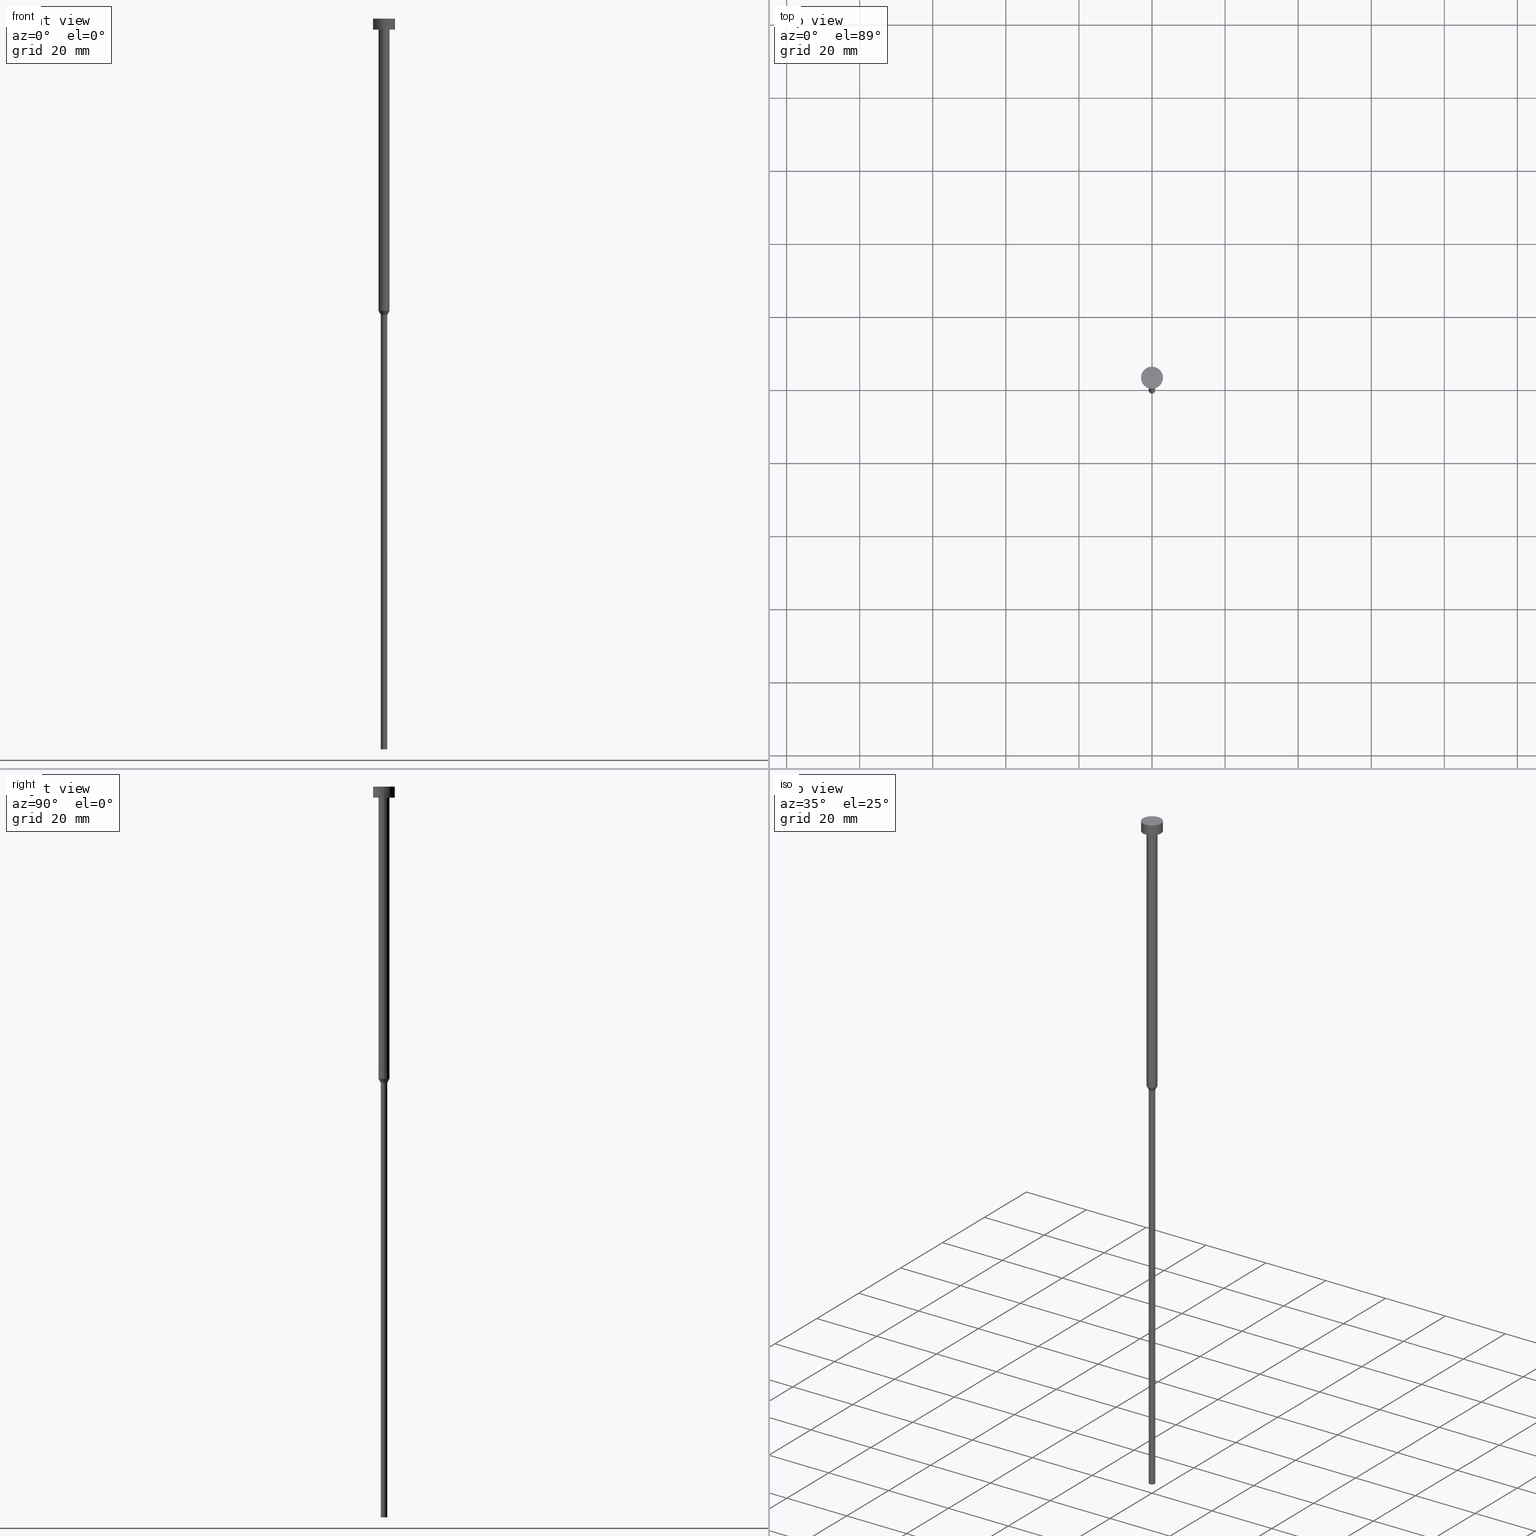
[diagram: canonical four-view strip — front | top / right | iso, engineering-drawing reading convention]
A machine part, canonical four-view strip (front | top / right | iso — engineering-drawing reading convention). The complete STEP part file that produces these views, byte-faithful:
ISO-10303-21;
HEADER;
FILE_DESCRIPTION (( 'STEP AP203' ),
    '1' );
FILE_NAME ('7287.STEP',
    '2023-02-13T09:04:04',
    ( '' ),
    ( '' ),
    'SwSTEP 2.0',
    'SolidWorks 2019',
    '' );
FILE_SCHEMA (( 'CONFIG_CONTROL_DESIGN' ));
ENDSEC;

DATA;
#1 = DIRECTION ( 'NONE',  ( 1.000000000000000000, 0.000000000000000000, 0.000000000000000000 ) ) ;
#2 = ORIENTED_EDGE ( 'NONE', *, *, #223, .F. ) ;
#3 = APPROVAL_PERSON_ORGANIZATION ( #311, #319, #115 ) ;
#4 =( LENGTH_UNIT ( ) NAMED_UNIT ( * ) SI_UNIT ( .MILLI., .METRE. ) );
#5 = ORIENTED_EDGE ( 'NONE', *, *, #349, .T. ) ;
#6 = PERSON_AND_ORGANIZATION ( #157, #102 ) ;
#7 = ADVANCED_FACE ( 'NONE', ( #289 ), #126, .T. ) ;
#8 = ORIENTED_EDGE ( 'NONE', *, *, #91, .F. ) ;
#9 = PERSON_AND_ORGANIZATION_ROLE ( 'design_owner' ) ;
#10 = ORIENTED_EDGE ( 'NONE', *, *, #305, .F. ) ;
#11 = EDGE_CURVE ( 'NONE', #221, #205, #51, .T. ) ;
#12 = ADVANCED_FACE ( 'NONE', ( #227 ), #202, .T. ) ;
#13 = CARTESIAN_POINT ( 'NONE',  ( 0.000000000000000000, 0.000000000000000000, 0.000000000000000000 ) ) ;
#14 = CYLINDRICAL_SURFACE ( 'NONE', #75, 3.000000000000000000 ) ;
#15 = CARTESIAN_POINT ( 'NONE',  ( 0.000000000000000000, 0.000000000000000000, -1.836970198721029934E-16 ) ) ;
#16 = CIRCLE ( 'NONE', #145, 3.000000000000000000 ) ;
#17 = DIRECTION ( 'NONE',  ( 1.000000000000000000, 0.000000000000000000, 0.000000000000000000 ) ) ;
#18 = ORIENTED_EDGE ( 'NONE', *, *, #268, .F. ) ;
#19 = CARTESIAN_POINT ( 'NONE',  ( -1.500000000000000000, 1.836970198721029934E-16, 0.000000000000000000 ) ) ;
#20 = DIRECTION ( 'NONE',  ( -0.000000000000000000, -0.000000000000000000, 1.000000000000000000 ) ) ;
#21 = VECTOR ( 'NONE', #74, 1000.000000000000000 ) ;
#22 = AXIS2_PLACEMENT_3D ( 'NONE', #156, #348, #210 ) ;
#23 = DIRECTION ( 'NONE',  ( 1.000000000000000000, 0.000000000000000000, 0.000000000000000000 ) ) ;
#24 = DIRECTION ( 'NONE',  ( -0.000000000000000000, -0.000000000000000000, 1.000000000000000000 ) ) ;
#25 = CARTESIAN_POINT ( 'NONE',  ( -1.500000000000000000, 1.836970198721029934E-16, -80.00000000000000000 ) ) ;
#26 = FACE_OUTER_BOUND ( 'NONE', #218, .T. ) ;
#27 = PERSON_AND_ORGANIZATION ( #157, #102 ) ;
#28 = CALENDAR_DATE ( 2023, 13, 2 ) ;
#29 = ORIENTED_EDGE ( 'NONE', *, *, #284, .F. ) ;
#30 = DIRECTION ( 'NONE',  ( 0.000000000000000000, 0.000000000000000000, 1.000000000000000000 ) ) ;
#31 = AXIS2_PLACEMENT_3D ( 'NONE', #295, #326, #176 ) ;
#32 = ORIENTED_EDGE ( 'NONE', *, *, #11, .F. ) ;
#33 = APPROVAL ( #308, 'NEUR�EN�' ) ;
#34 = SECURITY_CLASSIFICATION_LEVEL ( 'unclassified' ) ;
#35 = ORIENTED_EDGE ( 'NONE', *, *, #284, .T. ) ;
#36 = SECURITY_CLASSIFICATION ( '', '', #34 ) ;
#37 = LINE ( 'NONE', #97, #21 ) ;
#38 = DIRECTION ( 'NONE',  ( 1.000000000000000000, 0.000000000000000000, 0.000000000000000000 ) ) ;
#39 = APPROVAL_DATE_TIME ( #69, #33 ) ;
#40 = DIRECTION ( 'NONE',  ( 1.000000000000000000, 0.000000000000000000, 0.000000000000000000 ) ) ;
#41 = FACE_BOUND ( 'NONE', #279, .T. ) ;
#42 = CC_DESIGN_APPROVAL ( #319, ( #231 ) ) ;
#43 = ADVANCED_FACE ( 'NONE', ( #95 ), #318, .T. ) ;
#44 = DIRECTION ( 'NONE',  ( 1.000000000000000000, 0.000000000000000000, 0.000000000000000000 ) ) ;
#45 = CARTESIAN_POINT ( 'NONE',  ( 0.000000000000000000, 0.000000000000000000, -3.673940397442059868E-16 ) ) ;
#46 = DIRECTION ( 'NONE',  ( -0.000000000000000000, -0.000000000000000000, 1.000000000000000000 ) ) ;
#47 = DIRECTION ( 'NONE',  ( 1.000000000000000000, 0.000000000000000000, 0.000000000000000000 ) ) ;
#48 = CC_DESIGN_PERSON_AND_ORGANIZATION_ASSIGNMENT ( #215, #9, ( #328 ) ) ;
#49 = CARTESIAN_POINT ( 'NONE',  ( -3.000000000000000000, 3.673940397442059868E-16, -3.673940397442059868E-16 ) ) ;
#50 = LINE ( 'NONE', #25, #154 ) ;
#51 = CIRCLE ( 'NONE', #247, 0.9000000000000000222 ) ;
#52 = CONICAL_SURFACE ( 'NONE', #67, 1.500000000000000000, 0.5235987755982991487 ) ;
#53 = PERSON_AND_ORGANIZATION_ROLE ( 'design_supplier' ) ;
#54 = ORIENTED_EDGE ( 'NONE', *, *, #131, .T. ) ;
#55 = COORDINATED_UNIVERSAL_TIME_OFFSET ( 1, 0, .AHEAD. ) ;
#56 = EDGE_CURVE ( 'NONE', #58, #189, #340, .T. ) ;
#57 = EDGE_LOOP ( 'NONE', ( #87, #5, #216, #29 ) ) ;
#58 = VERTEX_POINT ( 'NONE', #150 ) ;
#59 = CC_DESIGN_PERSON_AND_ORGANIZATION_ASSIGNMENT ( #6, #109, ( #64 ) ) ;
#60 = DATE_AND_TIME ( #336, #233 ) ;
#61 = ORIENTED_EDGE ( 'NONE', *, *, #349, .F. ) ;
#62 = ADVANCED_FACE ( 'NONE', ( #148 ), #286, .T. ) ;
#63 = CARTESIAN_POINT ( 'NONE',  ( 0.000000000000000000, -3.000000000000000000, -3.000000000000000888 ) ) ;
#64 = PRODUCT_DEFINITION ( 'NEZN�M�', '', #231, #71 ) ;
#65 = LOCAL_TIME ( 10, 4, 4.000000000000000000, #240 ) ;
#66 = DIRECTION ( 'NONE',  ( 1.000000000000000000, 0.000000000000000000, 0.000000000000000000 ) ) ;
#67 = AXIS2_PLACEMENT_3D ( 'NONE', #350, #46, #23 ) ;
#68 = CONICAL_SURFACE ( 'NONE', #251, 1.500000000000000000, 0.5235987755982991487 ) ;
#69 = DATE_AND_TIME ( #73, #249 ) ;
#70 = DIRECTION ( 'NONE',  ( -0.000000000000000000, -0.000000000000000000, 1.000000000000000000 ) ) ;
#71 = DESIGN_CONTEXT ( 'detailed design', #332, 'design' ) ;
#72 = CARTESIAN_POINT ( 'NONE',  ( 0.000000000000000000, 0.000000000000000000, -200.0000000000000000 ) ) ;
#73 = CALENDAR_DATE ( 2023, 13, 2 ) ;
#74 = DIRECTION ( 'NONE',  ( -0.000000000000000000, -0.000000000000000000, 1.000000000000000000 ) ) ;
#75 = AXIS2_PLACEMENT_3D ( 'NONE', #225, #24, #236 ) ;
#76 = DIRECTION ( 'NONE',  ( -0.000000000000000000, -0.000000000000000000, 1.000000000000000000 ) ) ;
#77 = DIRECTION ( 'NONE',  ( 1.000000000000000000, 0.000000000000000000, 0.000000000000000000 ) ) ;
#78 = FACE_OUTER_BOUND ( 'NONE', #220, .T. ) ;
#79 = CARTESIAN_POINT ( 'NONE',  ( 0.000000000000000000, 0.000000000000000000, 0.000000000000000000 ) ) ;
#80 = CARTESIAN_POINT ( 'NONE',  ( 3.000000000000000000, 0.000000000000000000, 0.000000000000000000 ) ) ;
#81 = APPROVAL_STATUS ( 'not_yet_approved' ) ;
#82 = AXIS2_PLACEMENT_3D ( 'NONE', #169, #282, #38 ) ;
#83 = CIRCLE ( 'NONE', #301, 3.000000000000000000 ) ;
#84 = PERSON_AND_ORGANIZATION ( #157, #102 ) ;
#85 = VERTEX_POINT ( 'NONE', #320 ) ;
#86 = DATE_TIME_ROLE ( 'classification_date' ) ;
#87 = ORIENTED_EDGE ( 'NONE', *, *, #128, .F. ) ;
#88 = APPLICATION_PROTOCOL_DEFINITION ( 'international standard', 'config_control_design', 1994, #332 ) ;
#89 = EDGE_LOOP ( 'NONE', ( #140, #114 ) ) ;
#90 = PERSON_AND_ORGANIZATION_ROLE ( 'creator' ) ;
#91 = EDGE_CURVE ( 'NONE', #112, #221, #37, .T. ) ;
#92 = ORIENTED_EDGE ( 'NONE', *, *, #239, .T. ) ;
#93 = DIRECTION ( 'NONE',  ( 0.000000000000000000, -0.000000000000000000, 1.000000000000000000 ) ) ;
#94 = CARTESIAN_POINT ( 'NONE',  ( 1.500000000000000000, 0.000000000000000000, -80.00000000000000000 ) ) ;
#95 = FACE_OUTER_BOUND ( 'NONE', #272, .T. ) ;
#96 = UNCERTAINTY_MEASURE_WITH_UNIT (LENGTH_MEASURE( 1.000000000000000082E-05 ), #4, 'distance_accuracy_value', 'NONE');
#97 = CARTESIAN_POINT ( 'NONE',  ( 0.9000000000000000222, 0.000000000000000000, 0.000000000000000000 ) ) ;
#98 = ORIENTED_EDGE ( 'NONE', *, *, #305, .T. ) ;
#99 = ADVANCED_FACE ( 'NONE', ( #252 ), #229, .T. ) ;
#100 = VECTOR ( 'NONE', #315, 1000.000000000000000 ) ;
#101 = FACE_OUTER_BOUND ( 'NONE', #197, .T. ) ;
#102 = ORGANIZATION ( 'NEUR�EN�', 'NEUR�EN�', '' ) ;
#103 = DIRECTION ( 'NONE',  ( -0.000000000000000000, -0.000000000000000000, 1.000000000000000000 ) ) ;
#104 = EDGE_CURVE ( 'NONE', #189, #274, #262, .T. ) ;
#105 = DIRECTION ( 'NONE',  ( -0.000000000000000000, -0.000000000000000000, 1.000000000000000000 ) ) ;
#106 = DIRECTION ( 'NONE',  ( -0.5000000000000002220, 6.123233995736768501E-17, 0.8660254037844384856 ) ) ;
#107 = DIRECTION ( 'NONE',  ( 1.000000000000000000, 0.000000000000000000, 0.000000000000000000 ) ) ;
#108 = CARTESIAN_POINT ( 'NONE',  ( 0.9000000000000000222, 0.000000000000000000, -81.03923048454132072 ) ) ;
#109 = PERSON_AND_ORGANIZATION_ROLE ( 'creator' ) ;
#110 = CLOSED_SHELL ( 'NONE', ( #152, #43, #337, #196, #62, #99, #235, #246, #120, #12, #7 ) ) ;
#111 = ORIENTED_EDGE ( 'NONE', *, *, #255, .T. ) ;
#112 = VERTEX_POINT ( 'NONE', #170 ) ;
#113 = APPLICATION_PROTOCOL_DEFINITION ( 'international standard', 'config_control_design', 1994, #316 ) ;
#114 = ORIENTED_EDGE ( 'NONE', *, *, #131, .F. ) ;
#115 = APPROVAL_ROLE ( '' ) ;
#116 = ORIENTED_EDGE ( 'NONE', *, *, #223, .T. ) ;
#117 = VECTOR ( 'NONE', #147, 1000.000000000000227 ) ;
#118 = AXIS2_PLACEMENT_3D ( 'NONE', #238, #237, #264 ) ;
#119 = LINE ( 'NONE', #94, #117 ) ;
#120 = ADVANCED_FACE ( 'NONE', ( #41, #101 ), #206, .T. ) ;
#121 = CARTESIAN_POINT ( 'NONE',  ( 0.000000000000000000, 0.000000000000000000, 0.000000000000000000 ) ) ;
#122 = DIRECTION ( 'NONE',  ( 0.000000000000000000, 0.000000000000000000, -1.000000000000000000 ) ) ;
#123 = DIRECTION ( 'NONE',  ( 1.000000000000000000, 0.000000000000000000, 0.000000000000000000 ) ) ;
#124 = ORIENTED_EDGE ( 'NONE', *, *, #303, .T. ) ;
#125 = EDGE_CURVE ( 'NONE', #221, #58, #119, .T. ) ;
#126 = PLANE ( 'NONE',  #314 ) ;
#127 = CARTESIAN_POINT ( 'NONE',  ( 1.500000000000000000, 0.000000000000000000, 0.000000000000000000 ) ) ;
#128 = EDGE_CURVE ( 'NONE', #307, #312, #280, .T. ) ;
#129 = CARTESIAN_POINT ( 'NONE',  ( -3.000000000000000000, 3.673940397442059868E-16, -3.000000000000000888 ) ) ;
#130 = DIRECTION ( 'NONE',  ( 1.000000000000000000, 0.000000000000000000, 0.000000000000000000 ) ) ;
#131 = EDGE_CURVE ( 'NONE', #165, #112, #299, .T. ) ;
#132 = CARTESIAN_POINT ( 'NONE',  ( 0.000000000000000000, 0.000000000000000000, -3.000000000000000888 ) ) ;
#133 = CC_DESIGN_APPROVAL ( #33, ( #36 ) ) ;
#134 = CARTESIAN_POINT ( 'NONE',  ( -0.9000000000000000222, 1.102182119232617788E-16, -81.03923048454132072 ) ) ;
#135 = APPROVAL_ROLE ( '' ) ;
#136 = ORIENTED_EDGE ( 'NONE', *, *, #91, .T. ) ;
#137 = DIRECTION ( 'NONE',  ( 1.000000000000000000, 0.000000000000000000, 0.000000000000000000 ) ) ;
#138 = EDGE_LOOP ( 'NONE', ( #163, #260, #10, #275 ) ) ;
#139 = DIRECTION ( 'NONE',  ( -0.000000000000000000, -0.000000000000000000, 1.000000000000000000 ) ) ;
#140 = ORIENTED_EDGE ( 'NONE', *, *, #181, .F. ) ;
#141 = COORDINATED_UNIVERSAL_TIME_OFFSET ( 1, 0, .AHEAD. ) ;
#142 = EDGE_CURVE ( 'NONE', #213, #307, #173, .T. ) ;
#143 = ORIENTED_EDGE ( 'NONE', *, *, #56, .F. ) ;
#144 = APPROVAL_PERSON_ORGANIZATION ( #27, #293, #135 ) ;
#145 = AXIS2_PLACEMENT_3D ( 'NONE', #45, #20, #347 ) ;
#146 = ORIENTED_EDGE ( 'NONE', *, *, #257, .T. ) ;
#147 = DIRECTION ( 'NONE',  ( 0.5000000000000002220, 0.000000000000000000, 0.8660254037844384856 ) ) ;
#148 = FACE_OUTER_BOUND ( 'NONE', #89, .T. ) ;
#149 = DIRECTION ( 'NONE',  ( 1.000000000000000000, 0.000000000000000000, 0.000000000000000000 ) ) ;
#150 = CARTESIAN_POINT ( 'NONE',  ( 1.500000000000000000, 0.000000000000000000, -80.00000000000000000 ) ) ;
#151 = CARTESIAN_POINT ( 'NONE',  ( -1.500000000000000000, 1.836970198721029934E-16, -3.000000000000000888 ) ) ;
#152 = ADVANCED_FACE ( 'NONE', ( #201 ), #14, .T. ) ;
#153 = LINE ( 'NONE', #323, #258 ) ;
#154 = VECTOR ( 'NONE', #106, 1000.000000000000227 ) ;
#155 = CARTESIAN_POINT ( 'NONE',  ( 0.000000000000000000, 0.000000000000000000, -3.673940397442059868E-16 ) ) ;
#156 = CARTESIAN_POINT ( 'NONE',  ( 0.000000000000000000, 0.000000000000000000, -200.0000000000000000 ) ) ;
#157 = PERSON ( 'NEUR�EN�', 'NEUR�EN�', 'NEUR�EN�', ('NEUR�EN�'), ('NEUR�EN�'), ('NEUR�EN�') ) ;
#158 = DIRECTION ( 'NONE',  ( -0.000000000000000000, -0.000000000000000000, 1.000000000000000000 ) ) ;
#159 = AXIS2_PLACEMENT_3D ( 'NONE', #132, #76, #267 ) ;
#160 = ORIENTED_EDGE ( 'NONE', *, *, #125, .T. ) ;
#161 = PERSON_AND_ORGANIZATION ( #157, #102 ) ;
#162 = ORIENTED_EDGE ( 'NONE', *, *, #257, .F. ) ;
#163 = ORIENTED_EDGE ( 'NONE', *, *, #142, .T. ) ;
#164 = AXIS2_PLACEMENT_3D ( 'NONE', #79, #105, #107 ) ;
#165 = VERTEX_POINT ( 'NONE', #211 ) ;
#166 = ORIENTED_EDGE ( 'NONE', *, *, #181, .T. ) ;
#167 = DIRECTION ( 'NONE',  ( -0.000000000000000000, -0.000000000000000000, 1.000000000000000000 ) ) ;
#168 = APPROVAL_PERSON_ORGANIZATION ( #188, #33, #343 ) ;
#169 = CARTESIAN_POINT ( 'NONE',  ( 0.000000000000000000, 0.000000000000000000, -200.0000000000000000 ) ) ;
#170 = CARTESIAN_POINT ( 'NONE',  ( 0.9000000000000000222, 0.000000000000000000, -200.0000000000000000 ) ) ;
#171 = DIRECTION ( 'NONE',  ( -1.000000000000000000, 0.000000000000000000, -0.000000000000000000 ) ) ;
#172 = ORIENTED_EDGE ( 'NONE', *, *, #104, .F. ) ;
#173 = CIRCLE ( 'NONE', #250, 3.000000000000000000 ) ;
#174 = ORIENTED_EDGE ( 'NONE', *, *, #125, .F. ) ;
#175 = CYLINDRICAL_SURFACE ( 'NONE', #118, 0.9000000000000000222 ) ;
#176 = DIRECTION ( 'NONE',  ( 1.000000000000000000, 0.000000000000000000, 0.000000000000000000 ) ) ;
#177 = AXIS2_PLACEMENT_3D ( 'NONE', #72, #256, #171 ) ;
#178 = CARTESIAN_POINT ( 'NONE',  ( 0.000000000000000000, 0.000000000000000000, -80.00000000000000000 ) ) ;
#179 = CIRCLE ( 'NONE', #214, 0.9000000000000000222 ) ;
#180 = CARTESIAN_POINT ( 'NONE',  ( 0.000000000000000000, 0.000000000000000000, -3.000000000000000888 ) ) ;
#181 = EDGE_CURVE ( 'NONE', #112, #165, #270, .T. ) ;
#182 = DIRECTION ( 'NONE',  ( -0.000000000000000000, -0.000000000000000000, 1.000000000000000000 ) ) ;
#183 = AXIS2_PLACEMENT_3D ( 'NONE', #204, #222, #66 ) ;
#184 = DATE_AND_TIME ( #244, #65 ) ;
#185 = CC_DESIGN_APPROVAL ( #293, ( #64 ) ) ;
#186 = APPROVAL_STATUS ( 'not_yet_approved' ) ;
#187 = ORIENTED_EDGE ( 'NONE', *, *, #226, .F. ) ;
#188 = PERSON_AND_ORGANIZATION ( #157, #102 ) ;
#189 = VERTEX_POINT ( 'NONE', #290 ) ;
#190 = ADVANCED_BREP_SHAPE_REPRESENTATION ( '7287', ( #283, #288 ), #265 ) ;
#191 = DATE_AND_TIME ( #212, #330 ) ;
#192 = AXIS2_PLACEMENT_3D ( 'NONE', #63, #122, #339 ) ;
#193 = ORIENTED_EDGE ( 'NONE', *, *, #226, .T. ) ;
#194 =( NAMED_UNIT ( * ) PLANE_ANGLE_UNIT ( ) SI_UNIT ( $, .RADIAN. ) );
#195 = CC_DESIGN_PERSON_AND_ORGANIZATION_ASSIGNMENT ( #161, #273, ( #36 ) ) ;
#196 = ADVANCED_FACE ( 'NONE', ( #26 ), #175, .T. ) ;
#197 = EDGE_LOOP ( 'NONE', ( #277, #61 ) ) ;
#198 = CARTESIAN_POINT ( 'NONE',  ( -3.000000000000000000, 3.673940397442059868E-16, 0.000000000000000000 ) ) ;
#199 = AXIS2_PLACEMENT_3D ( 'NONE', #13, #342, #17 ) ;
#200 = VECTOR ( 'NONE', #158, 1000.000000000000000 ) ;
#201 = FACE_OUTER_BOUND ( 'NONE', #138, .T. ) ;
#202 = CYLINDRICAL_SURFACE ( 'NONE', #199, 3.000000000000000000 ) ;
#203 = SHAPE_DEFINITION_REPRESENTATION ( #254, #190 ) ;
#204 = CARTESIAN_POINT ( 'NONE',  ( 0.000000000000000000, 0.000000000000000000, 0.000000000000000000 ) ) ;
#205 = VERTEX_POINT ( 'NONE', #134 ) ;
#206 = PLANE ( 'NONE',  #192 ) ;
#207 = CIRCLE ( 'NONE', #322, 3.000000000000000000 ) ;
#208 = LINE ( 'NONE', #80, #346 ) ;
#209 = AXIS2_PLACEMENT_3D ( 'NONE', #121, #317, #149 ) ;
#210 = DIRECTION ( 'NONE',  ( 1.000000000000000000, 0.000000000000000000, 0.000000000000000000 ) ) ;
#211 = CARTESIAN_POINT ( 'NONE',  ( -0.9000000000000000222, 1.102182119232617788E-16, -200.0000000000000000 ) ) ;
#212 = CALENDAR_DATE ( 2023, 13, 2 ) ;
#213 = VERTEX_POINT ( 'NONE', #292 ) ;
#214 = AXIS2_PLACEMENT_3D ( 'NONE', #354, #103, #297 ) ;
#215 = PERSON_AND_ORGANIZATION ( #157, #102 ) ;
#216 = ORIENTED_EDGE ( 'NONE', *, *, #298, .T. ) ;
#217 = CARTESIAN_POINT ( 'NONE',  ( 0.000000000000000000, 0.000000000000000000, 0.000000000000000000 ) ) ;
#218 = EDGE_LOOP ( 'NONE', ( #166, #124, #32, #8 ) ) ;
#219 = COORDINATED_UNIVERSAL_TIME_OFFSET ( 1, 0, .AHEAD. ) ;
#220 = EDGE_LOOP ( 'NONE', ( #243, #111, #143, #174 ) ) ;
#221 = VERTEX_POINT ( 'NONE', #108 ) ;
#222 = DIRECTION ( 'NONE',  ( -0.000000000000000000, -0.000000000000000000, 1.000000000000000000 ) ) ;
#223 = EDGE_CURVE ( 'NONE', #274, #85, #321, .T. ) ;
#224 = DIRECTION ( 'NONE',  ( 1.000000000000000000, 0.000000000000000000, 0.000000000000000000 ) ) ;
#225 = CARTESIAN_POINT ( 'NONE',  ( 0.000000000000000000, 0.000000000000000000, 0.000000000000000000 ) ) ;
#226 = EDGE_CURVE ( 'NONE', #205, #221, #179, .T. ) ;
#227 = FACE_OUTER_BOUND ( 'NONE', #57, .T. ) ;
#228 = EDGE_LOOP ( 'NONE', ( #345, #193, #160, #18 ) ) ;
#229 = CYLINDRICAL_SURFACE ( 'NONE', #183, 0.9000000000000000222 ) ;
#230 = CC_DESIGN_DATE_AND_TIME_ASSIGNMENT ( #333, #86, ( #36 ) ) ;
#231 = PRODUCT_DEFINITION_FORMATION_WITH_SPECIFIED_SOURCE ( 'LIBOVOLN�', '', #328, .NOT_KNOWN. ) ;
#232 = CARTESIAN_POINT ( 'NONE',  ( 0.000000000000000000, 0.000000000000000000, -80.00000000000000000 ) ) ;
#233 = LOCAL_TIME ( 10, 4, 4.000000000000000000, #219 ) ;
#234 = FACE_OUTER_BOUND ( 'NONE', #331, .T. ) ;
#235 = ADVANCED_FACE ( 'NONE', ( #352 ), #52, .T. ) ;
#236 = DIRECTION ( 'NONE',  ( 1.000000000000000000, 0.000000000000000000, 0.000000000000000000 ) ) ;
#237 = DIRECTION ( 'NONE',  ( -0.000000000000000000, -0.000000000000000000, 1.000000000000000000 ) ) ;
#238 = CARTESIAN_POINT ( 'NONE',  ( 0.000000000000000000, 0.000000000000000000, 0.000000000000000000 ) ) ;
#239 = EDGE_CURVE ( 'NONE', #85, #274, #276, .T. ) ;
#240 = COORDINATED_UNIVERSAL_TIME_OFFSET ( 1, 0, .AHEAD. ) ;
#241 =( NAMED_UNIT ( * ) SI_UNIT ( $, .STERADIAN. ) SOLID_ANGLE_UNIT ( ) );
#242 = ORIENTED_EDGE ( 'NONE', *, *, #56, .T. ) ;
#243 = ORIENTED_EDGE ( 'NONE', *, *, #11, .T. ) ;
#244 = CALENDAR_DATE ( 2023, 13, 2 ) ;
#245 = ORIENTED_EDGE ( 'NONE', *, *, #303, .F. ) ;
#246 = ADVANCED_FACE ( 'NONE', ( #234 ), #296, .T. ) ;
#247 = AXIS2_PLACEMENT_3D ( 'NONE', #259, #341, #224 ) ;
#248 = ORIENTED_EDGE ( 'NONE', *, *, #268, .T. ) ;
#249 = LOCAL_TIME ( 10, 4, 4.000000000000000000, #287 ) ;
#250 = AXIS2_PLACEMENT_3D ( 'NONE', #285, #253, #40 ) ;
#251 = AXIS2_PLACEMENT_3D ( 'NONE', #178, #266, #130 ) ;
#252 = FACE_OUTER_BOUND ( 'NONE', #335, .T. ) ;
#253 = DIRECTION ( 'NONE',  ( -0.000000000000000000, -0.000000000000000000, 1.000000000000000000 ) ) ;
#254 = PRODUCT_DEFINITION_SHAPE ( 'NONE', 'NONE',  #64 ) ;
#255 = EDGE_CURVE ( 'NONE', #205, #189, #50, .T. ) ;
#256 = DIRECTION ( 'NONE',  ( 0.000000000000000000, 0.000000000000000000, -1.000000000000000000 ) ) ;
#257 = EDGE_CURVE ( 'NONE', #58, #85, #329, .T. ) ;
#258 = VECTOR ( 'NONE', #324, 1000.000000000000000 ) ;
#259 = CARTESIAN_POINT ( 'NONE',  ( 0.000000000000000000, 0.000000000000000000, -81.03923048454132072 ) ) ;
#260 = ORIENTED_EDGE ( 'NONE', *, *, #128, .T. ) ;
#261 = CC_DESIGN_DATE_AND_TIME_ASSIGNMENT ( #191, #271, ( #64 ) ) ;
#262 = LINE ( 'NONE', #19, #351 ) ;
#263 = DIRECTION ( 'NONE',  ( -0.000000000000000000, -0.000000000000000000, 1.000000000000000000 ) ) ;
#264 = DIRECTION ( 'NONE',  ( 1.000000000000000000, 0.000000000000000000, 0.000000000000000000 ) ) ;
#265 =( GEOMETRIC_REPRESENTATION_CONTEXT ( 3 ) GLOBAL_UNCERTAINTY_ASSIGNED_CONTEXT ( ( #96 ) ) GLOBAL_UNIT_ASSIGNED_CONTEXT ( ( #4, #194, #241 ) ) REPRESENTATION_CONTEXT ( 'NONE', 'WORKASPACE' ) );
#266 = DIRECTION ( 'NONE',  ( -0.000000000000000000, -0.000000000000000000, 1.000000000000000000 ) ) ;
#267 = DIRECTION ( 'NONE',  ( 1.000000000000000000, 0.000000000000000000, 0.000000000000000000 ) ) ;
#268 = EDGE_CURVE ( 'NONE', #189, #58, #304, .T. ) ;
#269 = DIRECTION ( 'NONE',  ( -0.000000000000000000, -0.000000000000000000, 1.000000000000000000 ) ) ;
#270 = CIRCLE ( 'NONE', #22, 0.9000000000000000222 ) ;
#271 = DATE_TIME_ROLE ( 'creation_date' ) ;
#272 = EDGE_LOOP ( 'NONE', ( #242, #334, #291, #162 ) ) ;
#273 = PERSON_AND_ORGANIZATION_ROLE ( 'classification_officer' ) ;
#274 = VERTEX_POINT ( 'NONE', #151 ) ;
#275 = ORIENTED_EDGE ( 'NONE', *, *, #298, .F. ) ;
#276 = CIRCLE ( 'NONE', #31, 1.500000000000000000 ) ;
#277 = ORIENTED_EDGE ( 'NONE', *, *, #142, .F. ) ;
#278 = APPROVAL_DATE_TIME ( #60, #319 ) ;
#279 = EDGE_LOOP ( 'NONE', ( #92, #116 ) ) ;
#280 = LINE ( 'NONE', #198, #100 ) ;
#281 = CC_DESIGN_SECURITY_CLASSIFICATION ( #36, ( #231 ) ) ;
#282 = DIRECTION ( 'NONE',  ( -0.000000000000000000, -0.000000000000000000, 1.000000000000000000 ) ) ;
#283 = MANIFOLD_SOLID_BREP ( 'Rotovat1', #110 ) ;
#284 = EDGE_CURVE ( 'NONE', #312, #309, #16, .T. ) ;
#285 = CARTESIAN_POINT ( 'NONE',  ( 0.000000000000000000, 0.000000000000000000, -3.000000000000000888 ) ) ;
#286 = PLANE ( 'NONE',  #177 ) ;
#287 = COORDINATED_UNIVERSAL_TIME_OFFSET ( 1, 0, .AHEAD. ) ;
#288 = AXIS2_PLACEMENT_3D ( 'NONE', #217, #30, #1 ) ;
#289 = FACE_OUTER_BOUND ( 'NONE', #313, .T. ) ;
#290 = CARTESIAN_POINT ( 'NONE',  ( -1.500000000000000000, 1.836970198721029934E-16, -80.00000000000000000 ) ) ;
#291 = ORIENTED_EDGE ( 'NONE', *, *, #239, .F. ) ;
#292 = CARTESIAN_POINT ( 'NONE',  ( 3.000000000000000000, 0.000000000000000000, -3.000000000000000888 ) ) ;
#293 = APPROVAL ( #81, 'NEUR�EN�' ) ;
#294 = CC_DESIGN_PERSON_AND_ORGANIZATION_ASSIGNMENT ( #84, #90, ( #231 ) ) ;
#295 = CARTESIAN_POINT ( 'NONE',  ( 0.000000000000000000, 0.000000000000000000, -3.000000000000000888 ) ) ;
#296 = CYLINDRICAL_SURFACE ( 'NONE', #164, 1.500000000000000000 ) ;
#297 = DIRECTION ( 'NONE',  ( 1.000000000000000000, 0.000000000000000000, 0.000000000000000000 ) ) ;
#298 = EDGE_CURVE ( 'NONE', #213, #309, #208, .T. ) ;
#299 = CIRCLE ( 'NONE', #82, 0.9000000000000000222 ) ;
#300 = PRODUCT_RELATED_PRODUCT_CATEGORY ( 'detail', '', ( #328 ) ) ;
#301 = AXIS2_PLACEMENT_3D ( 'NONE', #155, #269, #77 ) ;
#302 = MECHANICAL_CONTEXT ( 'NONE', #316, 'mechanical' ) ;
#303 = EDGE_CURVE ( 'NONE', #165, #205, #153, .T. ) ;
#304 = CIRCLE ( 'NONE', #327, 1.500000000000000000 ) ;
#305 = EDGE_CURVE ( 'NONE', #309, #312, #83, .T. ) ;
#306 = PERSON_AND_ORGANIZATION ( #157, #102 ) ;
#307 = VERTEX_POINT ( 'NONE', #129 ) ;
#308 = APPROVAL_STATUS ( 'not_yet_approved' ) ;
#309 = VERTEX_POINT ( 'NONE', #325 ) ;
#310 = AXIS2_PLACEMENT_3D ( 'NONE', #344, #167, #123 ) ;
#311 = PERSON_AND_ORGANIZATION ( #157, #102 ) ;
#312 = VERTEX_POINT ( 'NONE', #49 ) ;
#313 = EDGE_LOOP ( 'NONE', ( #98, #35 ) ) ;
#314 = AXIS2_PLACEMENT_3D ( 'NONE', #15, #93, #44 ) ;
#315 = DIRECTION ( 'NONE',  ( -0.000000000000000000, -0.000000000000000000, 1.000000000000000000 ) ) ;
#316 = APPLICATION_CONTEXT ( 'configuration controlled 3d designs of mechanical parts and assemblies' ) ;
#317 = DIRECTION ( 'NONE',  ( -0.000000000000000000, -0.000000000000000000, 1.000000000000000000 ) ) ;
#318 = CYLINDRICAL_SURFACE ( 'NONE', #209, 1.500000000000000000 ) ;
#319 = APPROVAL ( #186, 'NEUR�EN�' ) ;
#320 = CARTESIAN_POINT ( 'NONE',  ( 1.500000000000000000, 0.000000000000000000, -3.000000000000000888 ) ) ;
#321 = CIRCLE ( 'NONE', #159, 1.500000000000000000 ) ;
#322 = AXIS2_PLACEMENT_3D ( 'NONE', #180, #139, #137 ) ;
#323 = CARTESIAN_POINT ( 'NONE',  ( -0.9000000000000000222, 1.102182119232617788E-16, 0.000000000000000000 ) ) ;
#324 = DIRECTION ( 'NONE',  ( -0.000000000000000000, -0.000000000000000000, 1.000000000000000000 ) ) ;
#325 = CARTESIAN_POINT ( 'NONE',  ( 3.000000000000000000, 0.000000000000000000, -3.673940397442059868E-16 ) ) ;
#326 = DIRECTION ( 'NONE',  ( -0.000000000000000000, -0.000000000000000000, 1.000000000000000000 ) ) ;
#327 = AXIS2_PLACEMENT_3D ( 'NONE', #232, #263, #47 ) ;
#328 = PRODUCT ( '7287', '7287', '', ( #302 ) ) ;
#329 = LINE ( 'NONE', #127, #200 ) ;
#330 = LOCAL_TIME ( 10, 4, 4.000000000000000000, #55 ) ;
#331 = EDGE_LOOP ( 'NONE', ( #172, #248, #146, #2 ) ) ;
#332 = APPLICATION_CONTEXT ( 'configuration controlled 3d designs of mechanical parts and assemblies' ) ;
#333 = DATE_AND_TIME ( #28, #338 ) ;
#334 = ORIENTED_EDGE ( 'NONE', *, *, #104, .T. ) ;
#335 = EDGE_LOOP ( 'NONE', ( #245, #54, #136, #187 ) ) ;
#336 = CALENDAR_DATE ( 2023, 13, 2 ) ;
#337 = ADVANCED_FACE ( 'NONE', ( #78 ), #68, .T. ) ;
#338 = LOCAL_TIME ( 10, 4, 4.000000000000000000, #141 ) ;
#339 = DIRECTION ( 'NONE',  ( -1.000000000000000000, 0.000000000000000000, -0.000000000000000000 ) ) ;
#340 = CIRCLE ( 'NONE', #310, 1.500000000000000000 ) ;
#341 = DIRECTION ( 'NONE',  ( -0.000000000000000000, -0.000000000000000000, 1.000000000000000000 ) ) ;
#342 = DIRECTION ( 'NONE',  ( -0.000000000000000000, -0.000000000000000000, 1.000000000000000000 ) ) ;
#343 = APPROVAL_ROLE ( '' ) ;
#344 = CARTESIAN_POINT ( 'NONE',  ( 0.000000000000000000, 0.000000000000000000, -80.00000000000000000 ) ) ;
#345 = ORIENTED_EDGE ( 'NONE', *, *, #255, .F. ) ;
#346 = VECTOR ( 'NONE', #182, 1000.000000000000000 ) ;
#347 = DIRECTION ( 'NONE',  ( 1.000000000000000000, 0.000000000000000000, 0.000000000000000000 ) ) ;
#348 = DIRECTION ( 'NONE',  ( -0.000000000000000000, -0.000000000000000000, 1.000000000000000000 ) ) ;
#349 = EDGE_CURVE ( 'NONE', #307, #213, #207, .T. ) ;
#350 = CARTESIAN_POINT ( 'NONE',  ( 0.000000000000000000, 0.000000000000000000, -80.00000000000000000 ) ) ;
#351 = VECTOR ( 'NONE', #70, 1000.000000000000000 ) ;
#352 = FACE_OUTER_BOUND ( 'NONE', #228, .T. ) ;
#353 = CC_DESIGN_PERSON_AND_ORGANIZATION_ASSIGNMENT ( #306, #53, ( #231 ) ) ;
#354 = CARTESIAN_POINT ( 'NONE',  ( 0.000000000000000000, 0.000000000000000000, -81.03923048454132072 ) ) ;
#355 = APPROVAL_DATE_TIME ( #184, #293 ) ;
ENDSEC;
END-ISO-10303-21;
